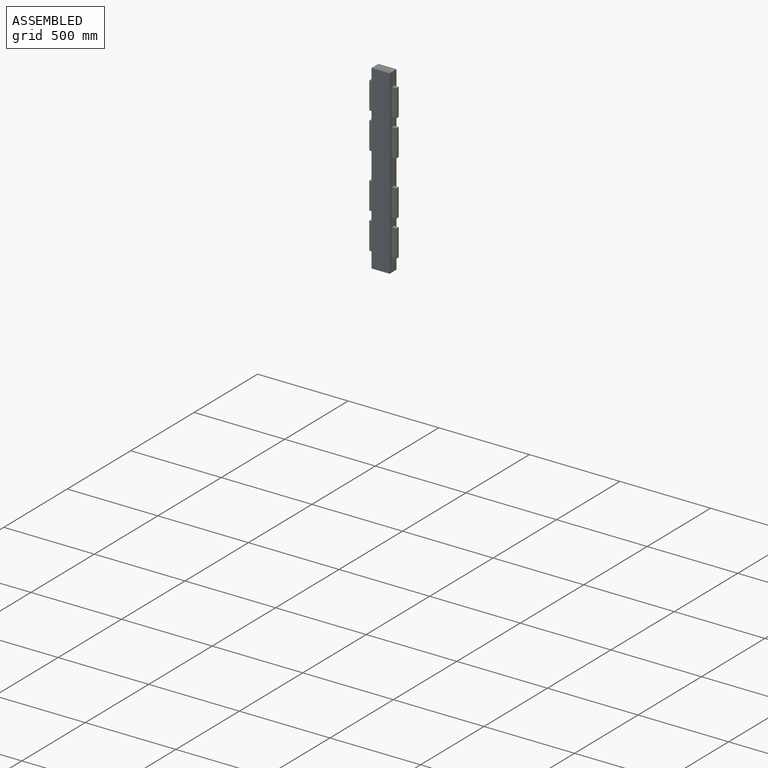
[diagram: assembled view]
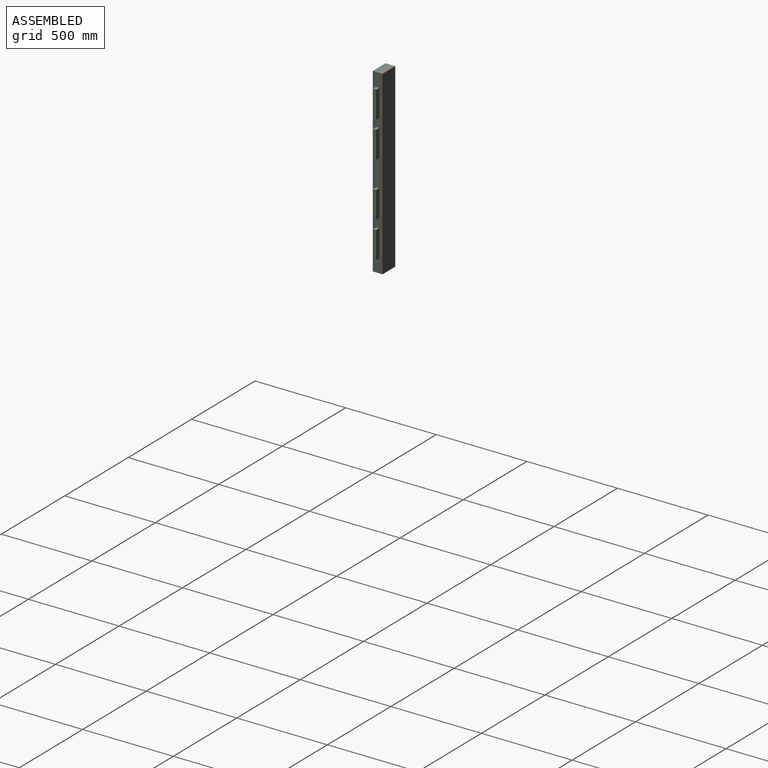
[diagram: assembled view, second angle]
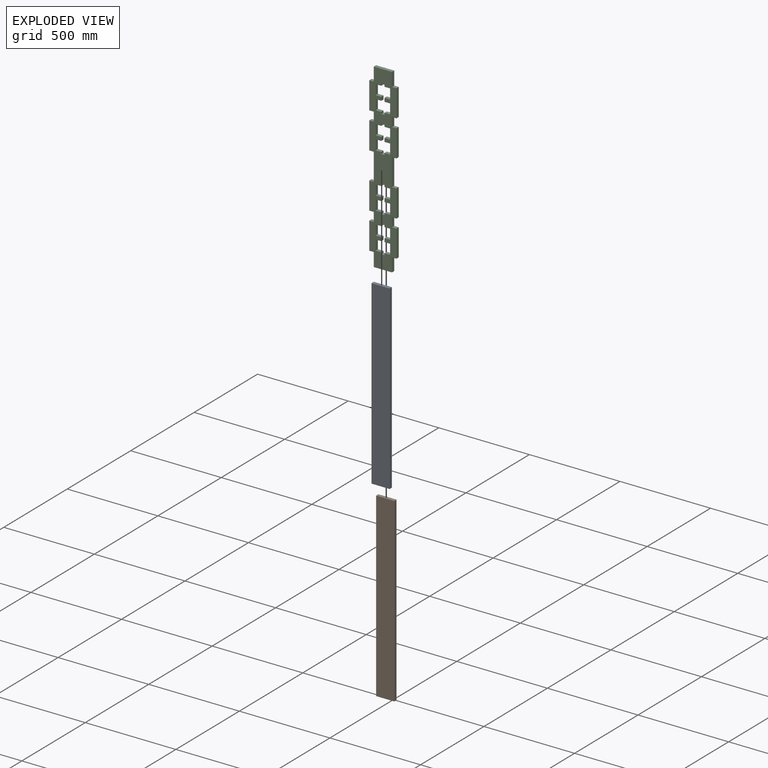
[diagram: exploded view]
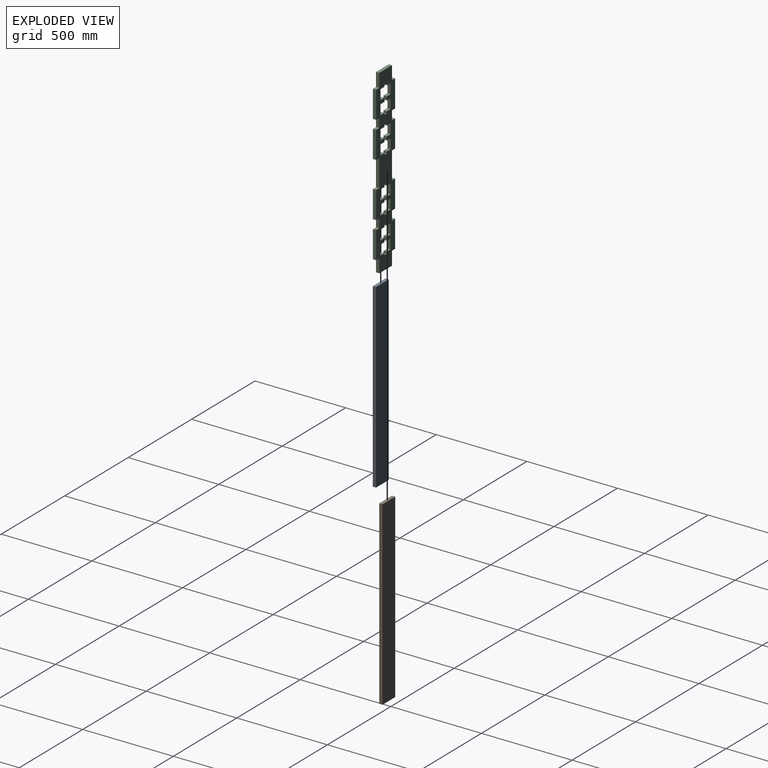
[diagram: exploded view, second angle]
ASSEMBLY  parts=3 mates=2
PART A: 6 faces, bbox 100x18x1000 mm
  f0: plane 100x18mm, normal (0,0,1), area 1800mm2, adj f1,f3,f4,f5
  f1: plane 1000x18mm, normal (-1,0,0), area 18000mm2, adj f0,f2,f4,f5
  f2: plane 100x18mm, normal (0,0,-1), area 1800mm2, adj f1,f3,f4,f5
  f3: plane 1000x18mm, normal (1,0,0), area 18000mm2, adj f0,f2,f4,f5
  f4: plane 1000x100mm, normal (0,-1,0), area 100000mm2, adj f0,f1,f2,f3
  f5: plane 1000x100mm, normal (0,1,0), area 100000mm2, adj f0,f1,f2,f3
PART B: same geometry as A
PART C: 118 faces, bbox 150x18x1000 mm
  f0: plane 31x18mm, normal (0,0,1), area 558mm2, adj f1,f115,f116,f117
  f1: plane 18x10mm, normal (-1,0,0), area 180mm2, adj f0,f2,f116,f117
  f2: plane 18x18mm, normal (0,0,1), area 324mm2, adj f1,f3,f116,f117
  f3: plane 18x10mm, normal (1,0,0), area 180mm2, adj f2,f4,f116,f117
  f4: plane 31x18mm, normal (0,0,1), area 558mm2, adj f3,f5,f116,f117
  f5: plane 55x18mm, normal (1,0,0), area 990mm2, adj f4,f6,f116,f117
  f6: plane 31x18mm, normal (0,0,-1), area 558mm2, adj f5,f7,f116,f117
  f7: plane 20x18mm, normal (1,0,0), area 360mm2, adj f6,f8,f116,f117
  f8: plane 31x18mm, normal (0,0,1), area 558mm2, adj f7,f9,f116,f117
  f9: plane 55x18mm, normal (1,0,0), area 990mm2, adj f8,f10,f116,f117
  f10: plane 31x18mm, normal (0,0,-1), area 558mm2, adj f9,f11,f116,f117
  f11: plane 18x10mm, normal (1,0,0), area 180mm2, adj f10,f12,f116,f117
  f12: plane 18x18mm, normal (0,0,-1), area 324mm2, adj f11,f13,f116,f117
  f13: plane 18x10mm, normal (-1,0,0), area 180mm2, adj f12,f14,f116,f117
  f14: plane 31x18mm, normal (0,0,-1), area 558mm2, adj f13,f15,f116,f117
  f15: plane 55x18mm, normal (-1,0,0), area 990mm2, adj f14,f16,f116,f117
  f16: plane 31x18mm, normal (0,0,1), area 558mm2, adj f15,f17,f116,f117
  f17: plane 20x18mm, normal (-1,0,0), area 360mm2, adj f16,f18,f116,f117
  f18: plane 31x18mm, normal (0,0,-1), area 558mm2, adj f17,f115,f116,f117
  f19: plane 31x18mm, normal (0,0,1), area 558mm2, adj f20,f111,f116,f117
  f20: plane 18x10mm, normal (-1,0,0), area 180mm2, adj f19,f21,f116,f117
  f21: plane 18x18mm, normal (0,0,1), area 324mm2, adj f20,f22,f116,f117
  f22: plane 18x10mm, normal (1,0,0), area 180mm2, adj f21,f23,f116,f117
  f23: plane 31x18mm, normal (0,0,1), area 558mm2, adj f22,f24,f116,f117
  f24: plane 55x18mm, normal (1,0,0), area 990mm2, adj f23,f25,f116,f117
  f25: plane 31x18mm, normal (0,0,-1), area 558mm2, adj f24,f26,f116,f117
  f26: plane 20x18mm, normal (1,0,0), area 360mm2, adj f25,f27,f116,f117
  f27: plane 31x18mm, normal (0,0,1), area 558mm2, adj f26,f28,f116,f117
  f28: plane 55x18mm, normal (1,0,0), area 990mm2, adj f27,f29,f116,f117
  f29: plane 31x18mm, normal (0,0,-1), area 558mm2, adj f28,f30,f116,f117
  f30: plane 18x10mm, normal (1,0,0), area 180mm2, adj f29,f31,f116,f117
  f31: plane 18x18mm, normal (0,0,-1), area 324mm2, adj f30,f32,f116,f117
  f32: plane 18x10mm, normal (-1,0,0), area 180mm2, adj f31,f33,f116,f117
  f33: plane 31x18mm, normal (0,0,-1), area 558mm2, adj f32,f34,f116,f117
  f34: plane 55x18mm, normal (-1,0,0), area 990mm2, adj f33,f35,f116,f117
  f35: plane 31x18mm, normal (0,0,1), area 558mm2, adj f34,f36,f116,f117
  f36: plane 20x18mm, normal (-1,0,0), area 360mm2, adj f35,f37,f116,f117
  f37: plane 31x18mm, normal (0,0,-1), area 558mm2, adj f36,f111,f116,f117
  f38: plane 75x18mm, normal (-1,0,0), area 1350mm2, adj f39,f112,f116,f117
  f39: plane 25x18mm, normal (0,0,1), area 450mm2, adj f38,f40,f116,f117
  f40: plane 150x18mm, normal (-1,0,0), area 2700mm2, adj f39,f41,f116,f117
  f41: plane 25x18mm, normal (0,0,-1), area 450mm2, adj f40,f42,f116,f117
  f42: plane 50x18mm, normal (-1,0,0), area 900mm2, adj f41,f43,f116,f117
  f43: plane 25x18mm, normal (0,0,1), area 450mm2, adj f42,f44,f116,f117
  f44: plane 150x18mm, normal (-1,0,0), area 2700mm2, adj f43,f45,f116,f117
  f45: plane 25x18mm, normal (0,0,-1), area 450mm2, adj f44,f46,f116,f117
  f46: plane 150x18mm, normal (-1,0,0), area 2700mm2, adj f45,f47,f116,f117
  f47: plane 25x18mm, normal (0,0,1), area 450mm2, adj f46,f48,f116,f117
  f48: plane 150x18mm, normal (-1,0,0), area 2700mm2, adj f47,f49,f116,f117
  f49: plane 25x18mm, normal (0,0,-1), area 450mm2, adj f48,f50,f116,f117
  f50: plane 50x18mm, normal (-1,0,0), area 900mm2, adj f49,f51,f116,f117
  f51: plane 25x18mm, normal (0,0,1), area 450mm2, adj f50,f52,f116,f117
  f52: plane 150x18mm, normal (-1,0,0), area 2700mm2, adj f51,f53,f116,f117
  f53: plane 25x18mm, normal (0,0,-1), area 450mm2, adj f52,f54,f116,f117
  f54: plane 75x18mm, normal (-1,0,0), area 1350mm2, adj f53,f55,f116,f117
  f55: plane 100x18mm, normal (0,0,-1), area 1800mm2, adj f54,f56,f116,f117
  f56: plane 75x18mm, normal (1,0,0), area 1350mm2, adj f55,f57,f116,f117
  f57: plane 25x18mm, normal (0,0,-1), area 450mm2, adj f56,f58,f116,f117
  f58: plane 150x18mm, normal (1,0,0), area 2700mm2, adj f57,f59,f116,f117
  f59: plane 25x18mm, normal (0,0,1), area 450mm2, adj f58,f60,f116,f117
  f60: plane 50x18mm, normal (1,0,0), area 900mm2, adj f59,f61,f116,f117
  f61: plane 25x18mm, normal (0,0,-1), area 450mm2, adj f60,f62,f116,f117
  f62: plane 150x18mm, normal (1,0,0), area 2700mm2, adj f61,f63,f116,f117
  f63: plane 25x18mm, normal (0,0,1), area 450mm2, adj f62,f64,f116,f117
  f64: plane 150x18mm, normal (1,0,0), area 2700mm2, adj f63,f65,f116,f117
  f65: plane 25x18mm, normal (0,0,-1), area 450mm2, adj f64,f66,f116,f117
  f66: plane 150x18mm, normal (1,0,0), area 2700mm2, adj f65,f67,f116,f117
  f67: plane 25x18mm, normal (0,0,1), area 450mm2, adj f66,f68,f116,f117
  f68: plane 50x18mm, normal (1,0,0), area 900mm2, adj f67,f69,f116,f117
  f69: plane 25x18mm, normal (0,0,-1), area 450mm2, adj f68,f70,f116,f117
  f70: plane 150x18mm, normal (1,0,0), area 2700mm2, adj f69,f71,f116,f117
  f71: plane 25x18mm, normal (0,0,1), area 450mm2, adj f70,f72,f116,f117
  f72: plane 75x18mm, normal (1,0,0), area 1350mm2, adj f71,f112,f116,f117
  f73: plane 18x18mm, normal (0,0,1), area 324mm2, adj f74,f113,f116,f117
  f74: plane 18x10mm, normal (1,0,0), area 180mm2, adj f73,f75,f116,f117
  f75: plane 31x18mm, normal (0,0,1), area 558mm2, adj f74,f76,f116,f117
  f76: plane 55x18mm, normal (1,0,0), area 990mm2, adj f75,f77,f116,f117
  f77: plane 31x18mm, normal (0,0,-1), area 558mm2, adj f76,f78,f116,f117
  f78: plane 20x18mm, normal (1,0,0), area 360mm2, adj f77,f79,f116,f117
  f79: plane 31x18mm, normal (0,0,1), area 558mm2, adj f78,f80,f116,f117
  f80: plane 55x18mm, normal (1,0,0), area 990mm2, adj f79,f81,f116,f117
  f81: plane 31x18mm, normal (0,0,-1), area 558mm2, adj f80,f82,f116,f117
  f82: plane 18x10mm, normal (1,0,0), area 180mm2, adj f81,f83,f116,f117
  f83: plane 18x18mm, normal (0,0,-1), area 324mm2, adj f82,f84,f116,f117
  f84: plane 18x10mm, normal (-1,0,0), area 180mm2, adj f83,f85,f116,f117
  f85: plane 31x18mm, normal (0,0,-1), area 558mm2, adj f84,f86,f116,f117
  f86: plane 55x18mm, normal (-1,0,0), area 990mm2, adj f85,f87,f116,f117
  f87: plane 31x18mm, normal (0,0,1), area 558mm2, adj f86,f88,f116,f117
  f88: plane 20x18mm, normal (-1,0,0), area 360mm2, adj f87,f89,f116,f117
  f89: plane 31x18mm, normal (0,0,-1), area 558mm2, adj f88,f90,f116,f117
  f90: plane 55x18mm, normal (-1,0,0), area 990mm2, adj f89,f91,f116,f117
  f91: plane 31x18mm, normal (0,0,1), area 558mm2, adj f90,f113,f116,f117
  f92: plane 18x18mm, normal (0,0,1), area 324mm2, adj f93,f114,f116,f117
  f93: plane 18x10mm, normal (1,0,0), area 180mm2, adj f92,f94,f116,f117
  f94: plane 31x18mm, normal (0,0,1), area 558mm2, adj f93,f95,f116,f117
  f95: plane 55x18mm, normal (1,0,0), area 990mm2, adj f94,f96,f116,f117
  f96: plane 31x18mm, normal (0,0,-1), area 558mm2, adj f95,f97,f116,f117
  f97: plane 20x18mm, normal (1,0,0), area 360mm2, adj f96,f98,f116,f117
  f98: plane 31x18mm, normal (0,0,1), area 558mm2, adj f97,f99,f116,f117
  f99: plane 55x18mm, normal (1,0,0), area 990mm2, adj f98,f100,f116,f117
  f100: plane 31x18mm, normal (0,0,-1), area 558mm2, adj f99,f101,f116,f117
  f101: plane 18x10mm, normal (1,0,0), area 180mm2, adj f100,f102,f116,f117
  f102: plane 18x18mm, normal (0,0,-1), area 324mm2, adj f101,f103,f116,f117
  f103: plane 18x10mm, normal (-1,0,0), area 180mm2, adj f102,f104,f116,f117
  f104: plane 31x18mm, normal (0,0,-1), area 558mm2, adj f103,f105,f116,f117
  f105: plane 55x18mm, normal (-1,0,0), area 990mm2, adj f104,f106,f116,f117
  f106: plane 31x18mm, normal (0,0,1), area 558mm2, adj f105,f107,f116,f117
  f107: plane 20x18mm, normal (-1,0,0), area 360mm2, adj f106,f108,f116,f117
  f108: plane 31x18mm, normal (0,0,-1), area 558mm2, adj f107,f109,f116,f117
  f109: plane 55x18mm, normal (-1,0,0), area 990mm2, adj f108,f110,f116,f117
  f110: plane 31x18mm, normal (0,0,1), area 558mm2, adj f109,f114,f116,f117
  f111: plane 55x18mm, normal (-1,0,0), area 990mm2, adj f19,f37,f116,f117
  f112: plane 100x18mm, normal (0,0,1), area 1800mm2, adj f38,f72,f116,f117
  f113: plane 18x10mm, normal (-1,0,0), area 180mm2, adj f73,f91,f116,f117
  f114: plane 18x10mm, normal (-1,0,0), area 180mm2, adj f92,f110,f116,f117
  f115: plane 55x18mm, normal (-1,0,0), area 990mm2, adj f0,f18,f116,f117
  f116: plane 1000x150mm, normal (0,-1,0), area 91920mm2, adj f0,f1,f2,f3,f4,f5,f6,f7
  f117: plane 1000x150mm, normal (0,1,0), area 91920mm2, adj f0,f1,f2,f3,f4,f5,f6,f7
PLACE A t=(-66.96,-58.39,-65.89)mm
PLACE B t=(-66.96,-22.39,-65.89)mm
PLACE C t=(-16.96,-40.39,-65.89)mm
MATE fastened A.f0 <-> C.f112  axis (0,0,1) through (-66.96,-58.39,934.11)mm
MATE fastened B.f0 <-> C.f112  axis (0,0,1) through (-66.96,-40.39,934.11)mm
